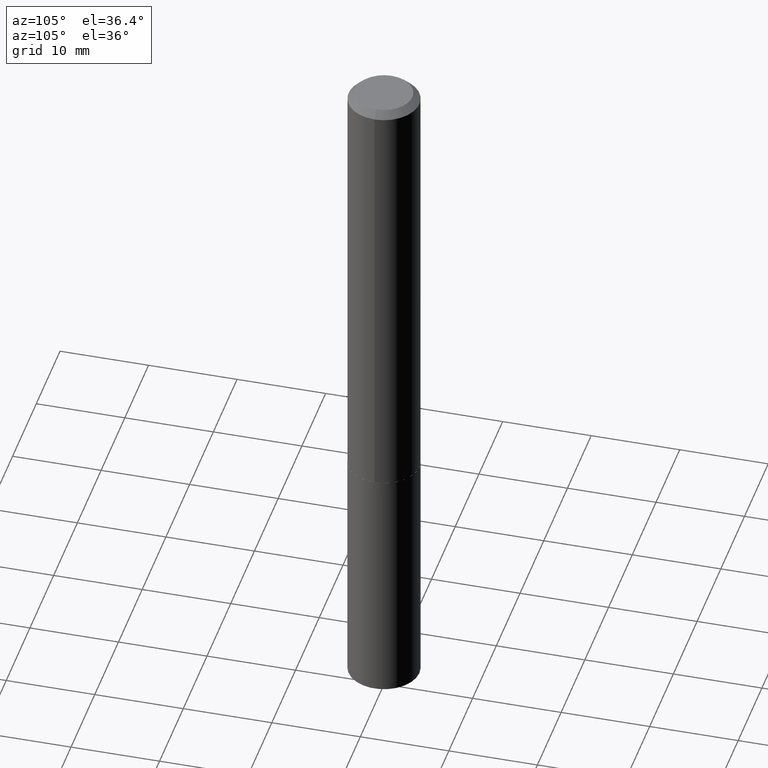
[diagram: clean part render]
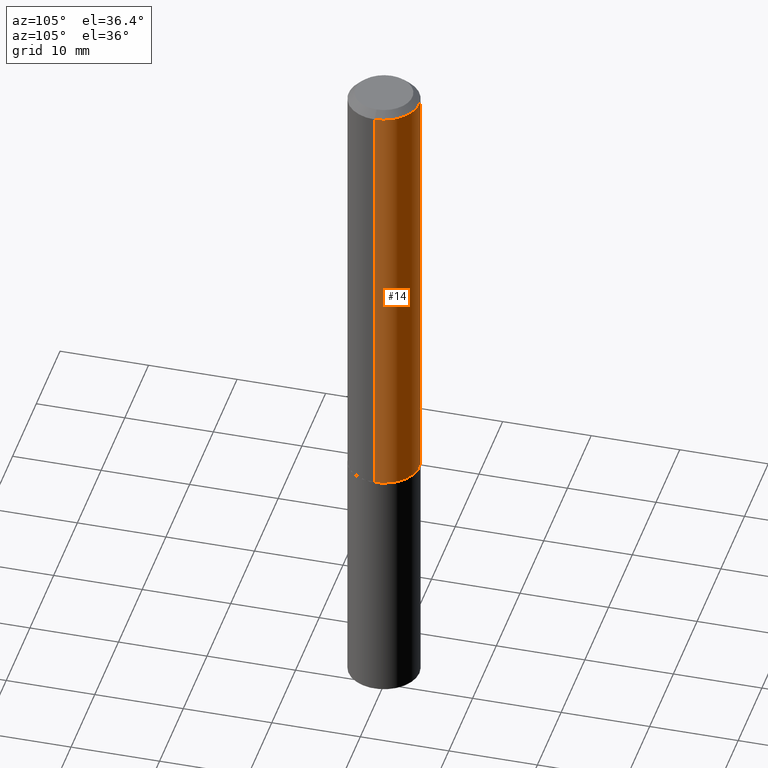
[diagram: same view with one face highlighted and labeled with its STEP entity id]
A machine part, auxiliary view. The second image highlights one B-rep face of the part: STEP entity #14.
In plain terms, the highlighted cylindrical surface (partial cylindrical patch) has radius 4.0005 mm, axis along (-0, 0, 1).
Its self-contained STEP definition (entity closure, byte-faithful):
#3 = AXIS2_PLACEMENT_3D ( 'NONE', #268, #240, #80 ) ;
#12 = CYLINDRICAL_SURFACE ( 'NONE', #3, 0.1575000000000000844 ) ;
#14 = ADVANCED_FACE ( 'NONE', ( #87 ), #12, .T. ) ;
#16 = CARTESIAN_POINT ( 'NONE',  ( -0.1575000000000002232, -5.752130466021151811E-15, -1.968000000000000194 ) ) ;
#20 = DIRECTION ( 'NONE',  ( 1.000000000000000000, -6.982962677686265133E-15, 0.000000000000000000 ) ) ;
#25 = CARTESIAN_POINT ( 'NONE',  ( 4.812682610572349594E-29, -6.871235274843310993E-15, -1.968000000000000194 ) ) ;
#29 = DIRECTION ( 'NONE',  ( -2.445468806185136597E-29, 3.491481338843145583E-15, 1.000000000000000000 ) ) ;
#48 = EDGE_CURVE ( 'NONE', #260, #372, #367, .T. ) ;
#80 = DIRECTION ( 'NONE',  ( 1.000000000000000000, -6.982962677686267499E-15, 4.876176775795936353E-29 ) ) ;
#87 = FACE_OUTER_BOUND ( 'NONE', #285, .T. ) ;
#90 = ORIENTED_EDGE ( 'NONE', *, *, #340, .F. ) ;
#94 = LINE ( 'NONE', #386, #234 ) ;
#108 = CARTESIAN_POINT ( 'NONE',  ( 7.642090019328604414E-31, -1.091087918388490513E-16, -0.03125000000000021511 ) ) ;
#136 = VECTOR ( 'NONE', #201, 39.37007874015748143 ) ;
#153 = CARTESIAN_POINT ( 'NONE',  ( 0.1575000000000000011, -1.208925413574435989E-15, -0.03125000000000021511 ) ) ;
#181 = CIRCLE ( 'NONE', #259, 0.1575000000000002232 ) ;
#193 = EDGE_CURVE ( 'NONE', #286, #283, #181, .T. ) ;
#201 = DIRECTION ( 'NONE',  ( -2.445468806185136877E-29, 3.491481338843145188E-15, 1.000000000000000000 ) ) ;
#206 = AXIS2_PLACEMENT_3D ( 'NONE', #108, #272, #296 ) ;
#231 = CARTESIAN_POINT ( 'NONE',  ( -0.1575000000000000011, -2.371067224518920865E-15, -0.03125000000000021511 ) ) ;
#234 = VECTOR ( 'NONE', #358, 39.37007874015748143 ) ;
#240 = DIRECTION ( 'NONE',  ( -2.445468806185136597E-29, 3.491481338843145583E-15, 1.000000000000000000 ) ) ;
#253 = EDGE_CURVE ( 'NONE', #283, #372, #94, .T. ) ;
#259 = AXIS2_PLACEMENT_3D ( 'NONE', #25, #29, #20 ) ;
#260 = VERTEX_POINT ( 'NONE', #153 ) ;
#268 = CARTESIAN_POINT ( 'NONE',  ( 0.000000000000000000, 0.000000000000000000, 0.000000000000000000 ) ) ;
#272 = DIRECTION ( 'NONE',  ( -2.445468806185136597E-29, 3.491481338843145583E-15, 1.000000000000000000 ) ) ;
#273 = CARTESIAN_POINT ( 'NONE',  ( 0.1575000000000002232, -7.971051896578899262E-15, -1.968000000000000194 ) ) ;
#283 = VERTEX_POINT ( 'NONE', #16 ) ;
#285 = EDGE_LOOP ( 'NONE', ( #347, #287, #292, #90 ) ) ;
#286 = VERTEX_POINT ( 'NONE', #273 ) ;
#287 = ORIENTED_EDGE ( 'NONE', *, *, #253, .T. ) ;
#292 = ORIENTED_EDGE ( 'NONE', *, *, #48, .F. ) ;
#296 = DIRECTION ( 'NONE',  ( 1.000000000000000000, -6.982962677686265922E-15, 0.000000000000000000 ) ) ;
#319 = LINE ( 'NONE', #375, #136 ) ;
#340 = EDGE_CURVE ( 'NONE', #286, #260, #319, .T. ) ;
#347 = ORIENTED_EDGE ( 'NONE', *, *, #193, .T. ) ;
#358 = DIRECTION ( 'NONE',  ( -2.445468806185136877E-29, 3.491481338843145188E-15, 1.000000000000000000 ) ) ;
#367 = CIRCLE ( 'NONE', #206, 0.1575000000000000011 ) ;
#372 = VERTEX_POINT ( 'NONE', #231 ) ;
#375 = CARTESIAN_POINT ( 'NONE',  ( 0.1575000000000000844, -1.099816621735587677E-15, 7.679978421878603638E-30 ) ) ;
#386 = CARTESIAN_POINT ( 'NONE',  ( -0.1575000000000000844, 1.119104808822158392E-15, -7.747322767151481189E-30 ) ) ;